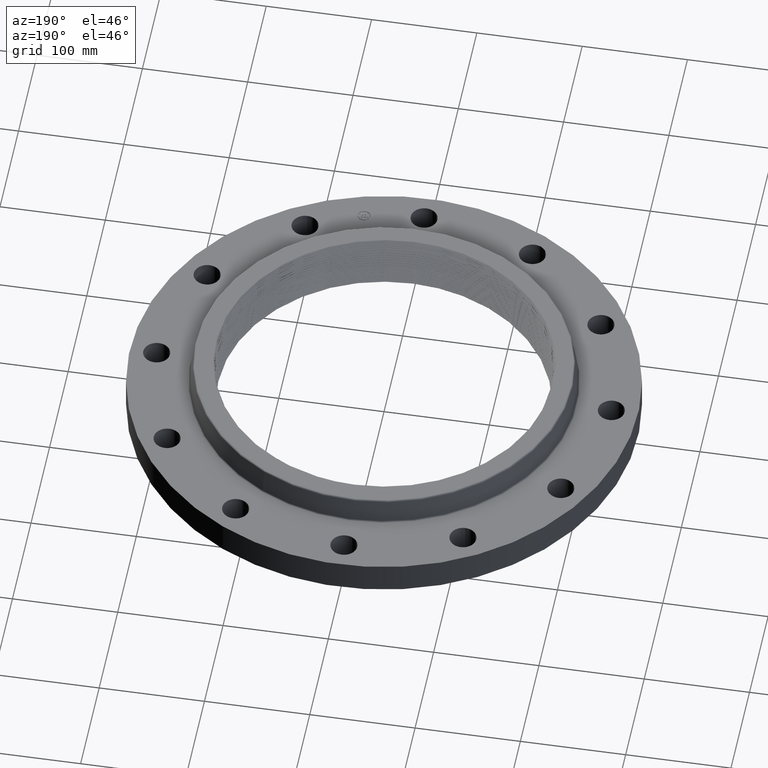
[diagram: clean part render]
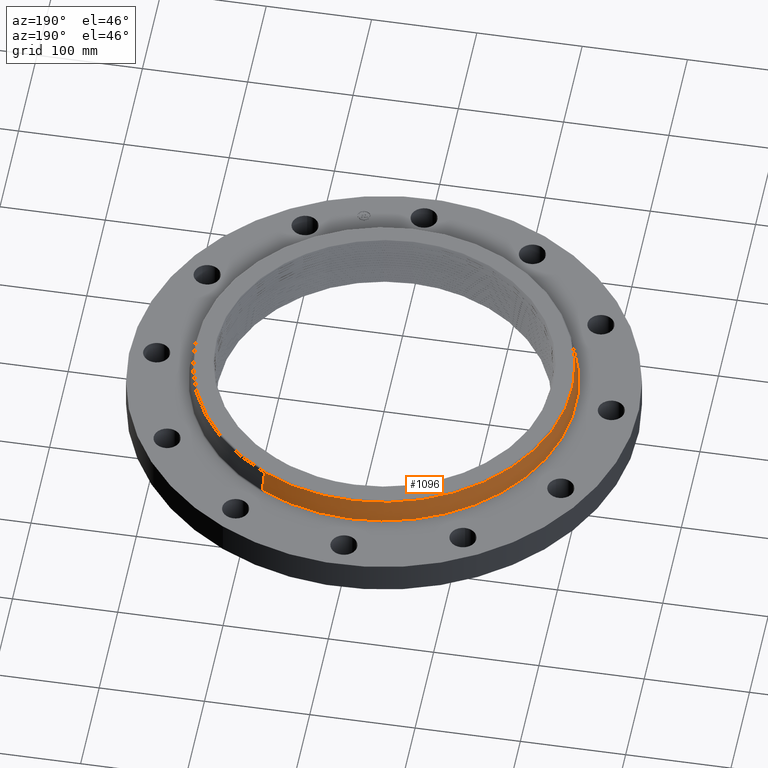
[diagram: same view with one face highlighted and labeled with its STEP entity id]
A machine part, auxiliary view. The second image highlights one B-rep face of the part: STEP entity #1096.
In plain terms, the highlighted conical surface has half-angle 10 deg.
Its self-contained STEP definition (entity closure, byte-faithful):
#1030=AXIS2_PLACEMENT_3D('Circle Axis2P3D',#1028,#1029,$) ;
#1069=AXIS2_PLACEMENT_3D('Cone Axis2P3D',#1066,#1067,#1068) ;
#1073=AXIS2_PLACEMENT_3D('Circle Axis2P3D',#1071,#1072,$) ;
#1028=CARTESIAN_POINT('Axis2P3D Location',(0.,0.,2.07041889067)) ;
#1032=CARTESIAN_POINT('Vertex',(-3.37264283261,-6.17358129481,2.07041889067)) ;
#1034=CARTESIAN_POINT('Vertex',(3.37264283261,6.17358129481,2.07041889067)) ;
#1066=CARTESIAN_POINT('Axis2P3D Location',(0.,0.,2.07041889067)) ;
#1071=CARTESIAN_POINT('Axis2P3D Location',(0.,0.,1.23958110934)) ;
#1075=CARTESIAN_POINT('Vertex',(-3.44287825089,-6.30214636561,1.23958110934)) ;
#1077=CARTESIAN_POINT('Vertex',(3.44287825089,6.30214636561,1.23958110934)) ;
#1080=CARTESIAN_POINT('Line Origine',(-3.40776054175,-6.23786383021,1.65500000001)) ;
#1085=CARTESIAN_POINT('Line Origine',(3.40776054175,6.23786383021,1.65500000001)) ;
#1029=DIRECTION('Axis2P3D Direction',(0.,0.,-0.0393700787402)) ;
#1067=DIRECTION('Axis2P3D Direction',(0.,0.,-0.0393700787402)) ;
#1068=DIRECTION('Axis2P3D XDirection',(0.0188750212049,0.0345504945626,0.)) ;
#1072=DIRECTION('Axis2P3D Direction',(0.,0.,-0.0393700787402)) ;
#1081=DIRECTION('Vector Direction',(-0.00327761303565,-0.00599963041829,-0.03877195878)) ;
#1086=DIRECTION('Vector Direction',(0.00327761303565,0.00599963041829,-0.03877195878)) ;
#1082=VECTOR('Line Direction',#1081,0.0393700787402) ;
#1087=VECTOR('Line Direction',#1086,0.0393700787402) ;
#1091=ORIENTED_EDGE('',*,*,#1079,.F.) ;
#1092=ORIENTED_EDGE('',*,*,#1084,.T.) ;
#1093=ORIENTED_EDGE('',*,*,#1036,.T.) ;
#1094=ORIENTED_EDGE('',*,*,#1089,.F.) ;
#1096=ADVANCED_FACE('PartBody',(#1095),#1070,.T.) ;
#1031=CIRCLE('generated circle',#1030,7.03475839528) ;
#1074=CIRCLE('generated circle',#1073,7.18125751272) ;
#1070=CONICAL_SURFACE('Cone',#1069,7.03475839528,0.174532925199) ;
#1036=EDGE_CURVE('',#1033,#1035,#1031,.T.) ;
#1079=EDGE_CURVE('',#1076,#1078,#1074,.T.) ;
#1084=EDGE_CURVE('',#1076,#1033,#1083,.F.) ;
#1089=EDGE_CURVE('',#1078,#1035,#1088,.F.) ;
#1090=EDGE_LOOP('',(#1091,#1092,#1093,#1094)) ;
#1095=FACE_OUTER_BOUND('',#1090,.T.) ;
#1083=LINE('Line',#1080,#1082) ;
#1088=LINE('Line',#1085,#1087) ;
#1033=VERTEX_POINT('',#1032) ;
#1035=VERTEX_POINT('',#1034) ;
#1076=VERTEX_POINT('',#1075) ;
#1078=VERTEX_POINT('',#1077) ;